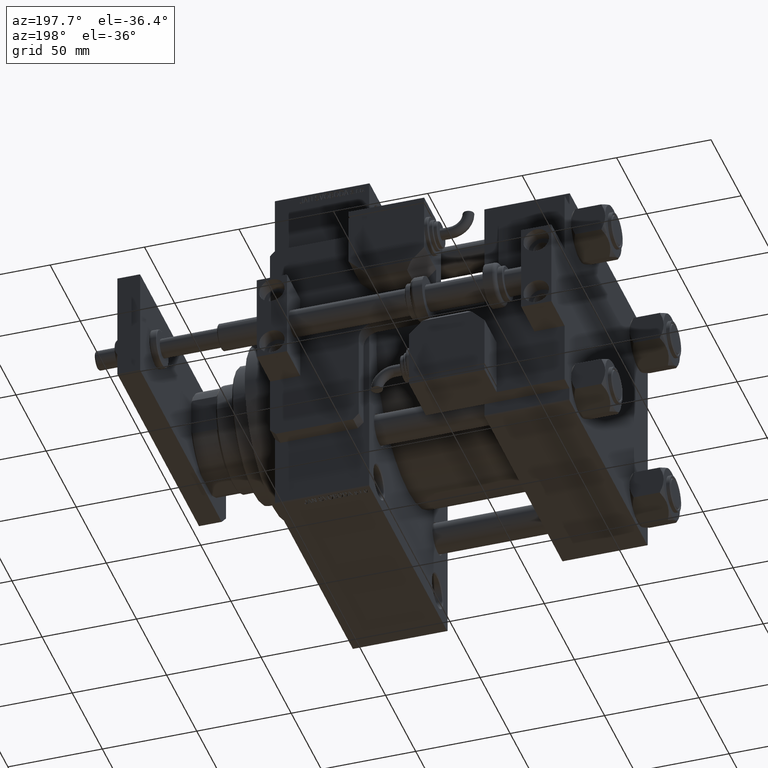
[diagram: clean part render]
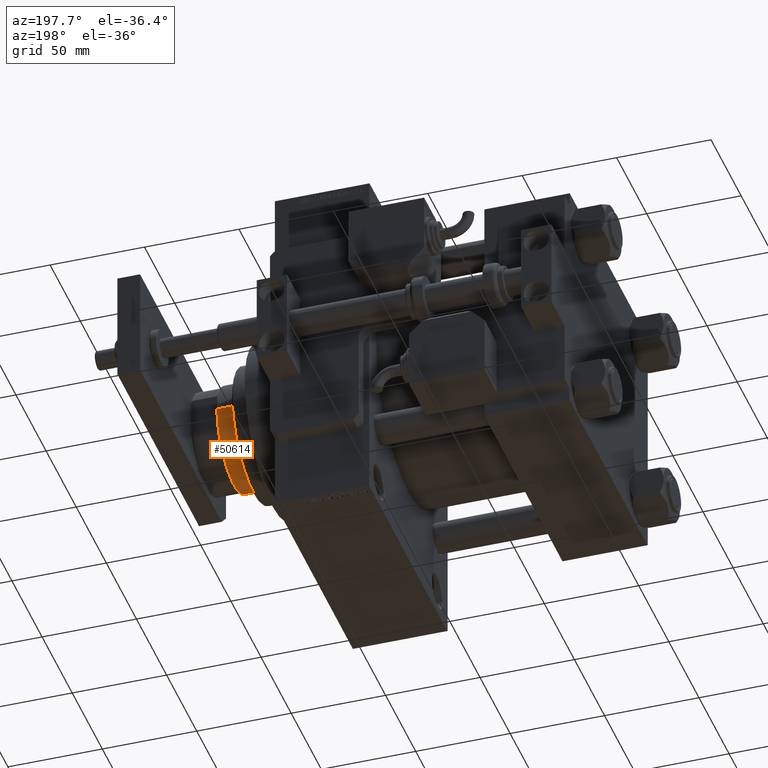
[diagram: same view with one face highlighted and labeled with its STEP entity id]
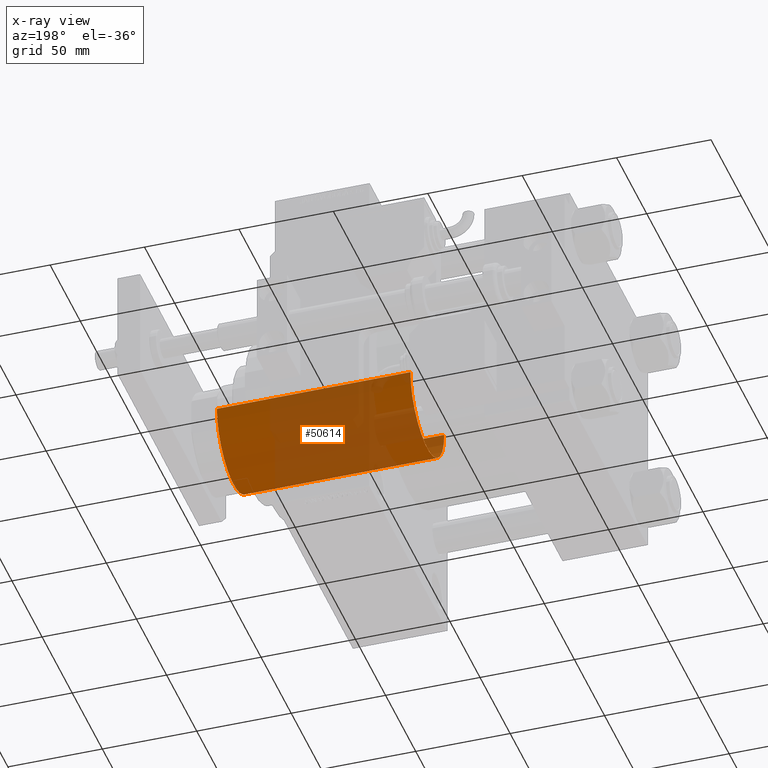
[diagram: x-ray of the same camera — body ghosted, the highlighted face saturated]
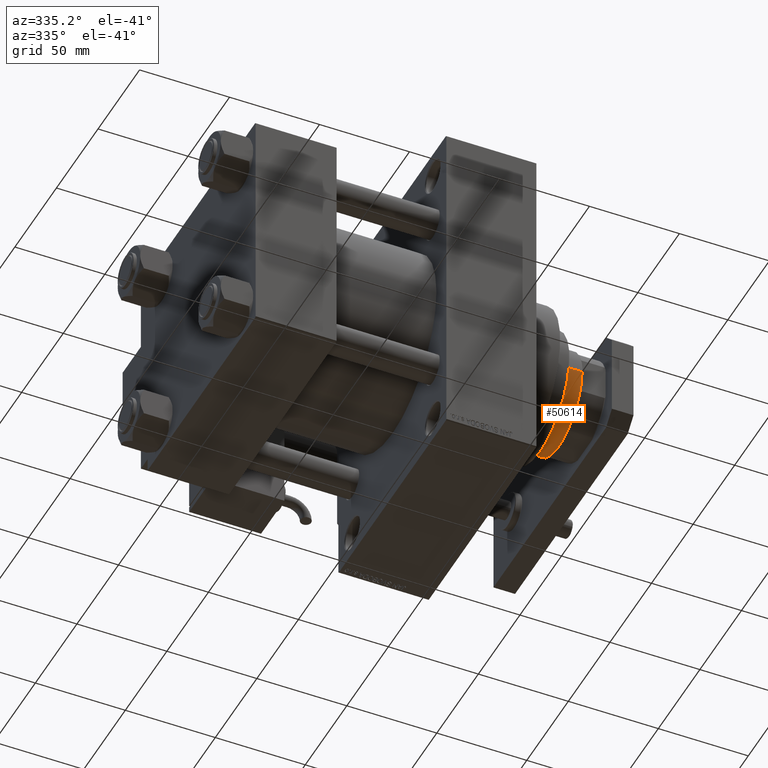
[diagram: same view with one face highlighted and labeled with its STEP entity id]
A machine part, auxiliary view. The second image highlights one B-rep face of the part: STEP entity #50614.
The next image is the same camera in x-ray: the body ghosted, the highlighted face saturated — about 65% of this face is hidden behind the body in this view.
A second angle (auxiliary view) of the same face is appended — the face is thin or edge-on in the first view.
In plain terms, the highlighted cylindrical surface (partial cylindrical patch) has radius 28 mm, axis along (-1, 0, 0).
Its self-contained STEP definition (entity closure, byte-faithful):
#327 = DIRECTION ( 'NONE',  ( 1.000000000000000000, 0.000000000000000000, 0.000000000000000000 ) ) ;
#504 = EDGE_CURVE ( 'NONE', #25730, #39983, #4224, .T. ) ;
#592 = ORIENTED_EDGE ( 'NONE', *, *, #30451, .F. ) ;
#3531 = CARTESIAN_POINT ( 'NONE',  ( 28.00000000000000000, 3.429011037612589276E-15, 153.5000000000000000 ) ) ;
#3950 = DIRECTION ( 'NONE',  ( -0.000000000000000000, -0.000000000000000000, -1.000000000000000000 ) ) ;
#4224 = LINE ( 'NONE', #12051, #15905 ) ;
#5195 = DIRECTION ( 'NONE',  ( 0.000000000000000000, 0.000000000000000000, 1.000000000000000000 ) ) ;
#10437 = AXIS2_PLACEMENT_3D ( 'NONE', #28782, #3950, #16352 ) ;
#11452 = VECTOR ( 'NONE', #30639, 1000.000000000000000 ) ;
#12051 = CARTESIAN_POINT ( 'NONE',  ( 28.00000000000000000, 3.429011037612589276E-15, 154.0000000000000000 ) ) ;
#12576 = DIRECTION ( 'NONE',  ( -0.000000000000000000, -0.000000000000000000, -1.000000000000000000 ) ) ;
#12985 = DIRECTION ( 'NONE',  ( 0.000000000000000000, 0.000000000000000000, -1.000000000000000000 ) ) ;
#13934 = AXIS2_PLACEMENT_3D ( 'NONE', #50037, #12985, #16776 ) ;
#15905 = VECTOR ( 'NONE', #12576, 1000.000000000000000 ) ;
#16352 = DIRECTION ( 'NONE',  ( -1.000000000000000000, 0.000000000000000000, 0.000000000000000000 ) ) ;
#16776 = DIRECTION ( 'NONE',  ( 1.000000000000000000, 0.000000000000000000, 0.000000000000000000 ) ) ;
#17219 = VERTEX_POINT ( 'NONE', #45407 ) ;
#19536 = LINE ( 'NONE', #51205, #11452 ) ;
#20988 = ORIENTED_EDGE ( 'NONE', *, *, #32961, .T. ) ;
#22245 = VERTEX_POINT ( 'NONE', #30766 ) ;
#22561 = CIRCLE ( 'NONE', #13934, 28.00000000000000000 ) ;
#23112 = EDGE_CURVE ( 'NONE', #17219, #25730, #22561, .T. ) ;
#25730 = VERTEX_POINT ( 'NONE', #3531 ) ;
#26002 = CARTESIAN_POINT ( 'NONE',  ( 0.000000000000000000, 0.000000000000000000, 51.00000000000000000 ) ) ;
#28558 = EDGE_LOOP ( 'NONE', ( #44809, #49281, #20988, #592 ) ) ;
#28782 = CARTESIAN_POINT ( 'NONE',  ( 0.000000000000000000, 0.000000000000000000, 154.0000000000000000 ) ) ;
#30451 = EDGE_CURVE ( 'NONE', #17219, #22245, #19536, .T. ) ;
#30639 = DIRECTION ( 'NONE',  ( -0.000000000000000000, -0.000000000000000000, -1.000000000000000000 ) ) ;
#30766 = CARTESIAN_POINT ( 'NONE',  ( -28.00000000000000000, 0.000000000000000000, 51.00000000000000000 ) ) ;
#32961 = EDGE_CURVE ( 'NONE', #39983, #22245, #48733, .T. ) ;
#36622 = AXIS2_PLACEMENT_3D ( 'NONE', #26002, #5195, #327 ) ;
#37987 = FACE_OUTER_BOUND ( 'NONE', #28558, .T. ) ;
#39983 = VERTEX_POINT ( 'NONE', #50089 ) ;
#40972 = CYLINDRICAL_SURFACE ( 'NONE', #10437, 28.00000000000000000 ) ;
#44809 = ORIENTED_EDGE ( 'NONE', *, *, #23112, .T. ) ;
#45407 = CARTESIAN_POINT ( 'NONE',  ( -28.00000000000000000, 0.000000000000000000, 153.5000000000000000 ) ) ;
#48733 = CIRCLE ( 'NONE', #36622, 28.00000000000000000 ) ;
#49281 = ORIENTED_EDGE ( 'NONE', *, *, #504, .T. ) ;
#50037 = CARTESIAN_POINT ( 'NONE',  ( 0.000000000000000000, 0.000000000000000000, 153.5000000000000000 ) ) ;
#50089 = CARTESIAN_POINT ( 'NONE',  ( 28.00000000000000000, 3.429011037612589276E-15, 51.00000000000000000 ) ) ;
#50614 = ADVANCED_FACE ( 'NONE', ( #37987 ), #40972, .T. ) ;
#51205 = CARTESIAN_POINT ( 'NONE',  ( -28.00000000000000000, 0.000000000000000000, 154.0000000000000000 ) ) ;